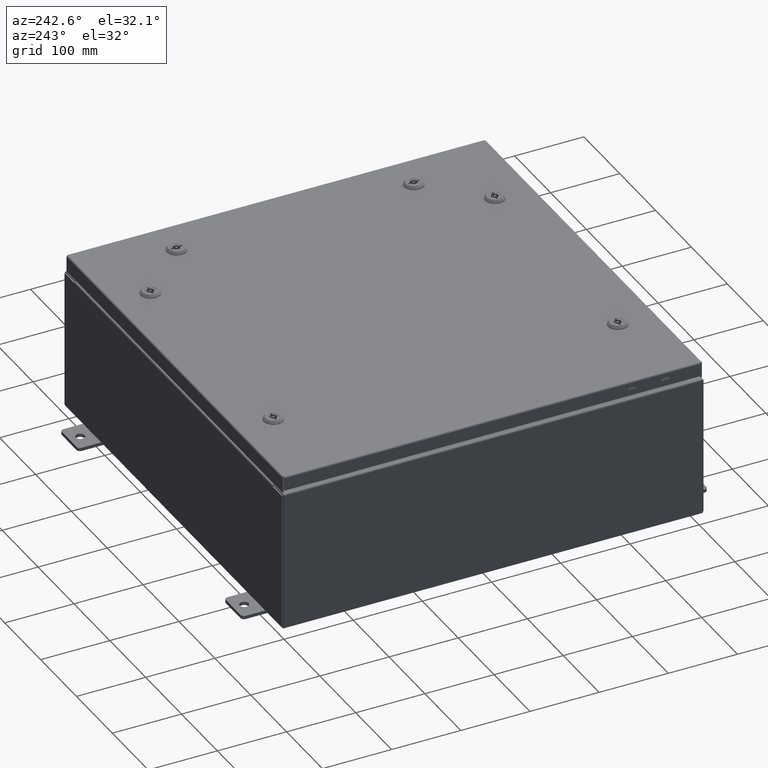
[diagram: clean part render]
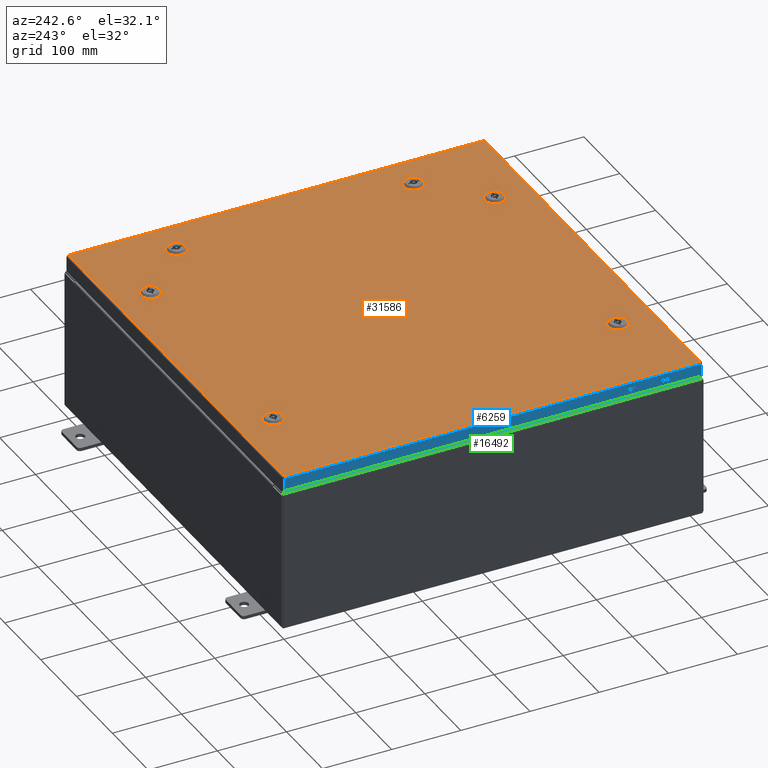
[diagram: same view with three faces highlighted in distinct colors, each labeled with its STEP entity id]
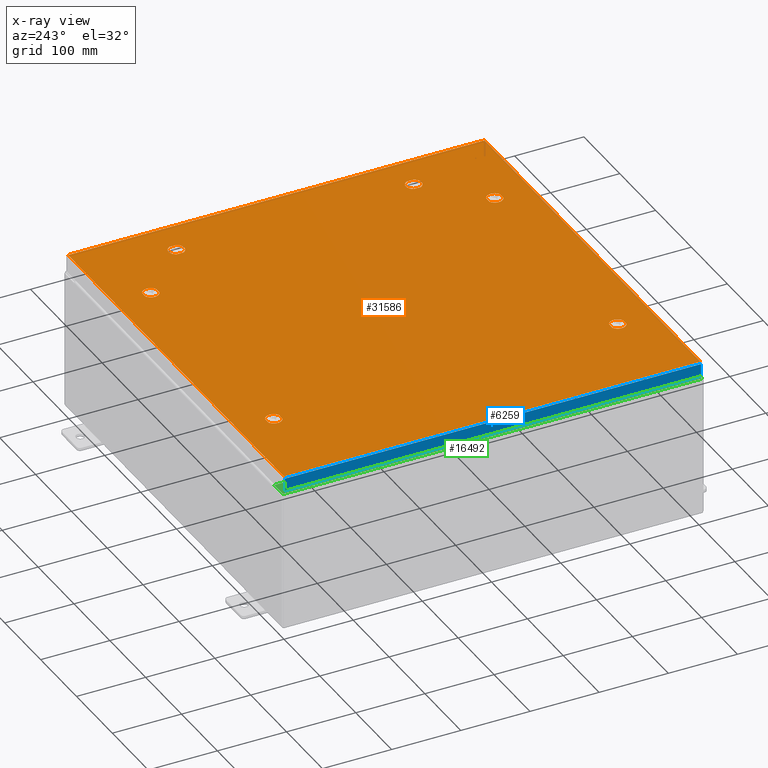
[diagram: x-ray of the same camera — body ghosted, the three highlighted faces saturated]
A machine part, auxiliary view with three faces highlighted in distinct colors.
The next image is the same camera in x-ray (body ghosted, the three faces saturated) — at least one of them is partly hidden behind the body in this view.
Their STEP definitions:

[orange] entity #31586 — the highlighted planar face has unit normal (0, 0, -1).
#211 = CARTESIAN_POINT ( 'NONE',  ( -6.550547624732093500, 10.18279999999998300, 0.0000000000000000000 ) ) ;
#259 = DIRECTION ( 'NONE',  ( 1.000000000000000000, -2.739348669069625000E-015, -6.982962677686286400E-015 ) ) ;
#1509 = CARTESIAN_POINT ( 'NONE',  ( 6.550547624732091700, 10.18279999999998400, -4.574222958191066700E-014 ) ) ;
#1725 = VERTEX_POINT ( 'NONE', #12674 ) ;
#1756 = DIRECTION ( 'NONE',  ( 1.000000000000000000, 0.0000000000000000000, 6.982962677686287200E-015 ) ) ;
#2871 = LINE ( 'NONE', #1509, #56580 ) ;
#2927 = VERTEX_POINT ( 'NONE', #31798 ) ;
#3581 = CARTESIAN_POINT ( 'NONE',  ( -11.84979999999999500, -11.84980000000000000, -2.048885995248197400E-016 ) ) ;
#3587 = CARTESIAN_POINT ( 'NONE',  ( 9.392800000000017100, -6.949452375267905600, -4.852776656685395200E-014 ) ) ;
#3820 = VECTOR ( 'NONE', #10266, 39.37007874015748100 ) ;
#3871 = CARTESIAN_POINT ( 'NONE',  ( 10.18280000000000200, 6.949452375267901200, 0.0000000000000000000 ) ) ;
#3961 = DIRECTION ( 'NONE',  ( -1.000000000000000000, 0.0000000000000000000, -0.0000000000000000000 ) ) ;
#4486 = AXIS2_PLACEMENT_3D ( 'NONE', #47868, #18446, #52763 ) ;
#4502 = ORIENTED_EDGE ( 'NONE', *, *, #22962, .F. ) ;
#4597 = EDGE_LOOP ( 'NONE', ( #37048, #53596, #56960, #48355 ) ) ;
#4646 = DIRECTION ( 'NONE',  ( -1.000000000000000000, -0.0000000000000000000, -0.0000000000000000000 ) ) ;
#4867 = LINE ( 'NONE', #3871, #16378 ) ;
#5065 = EDGE_CURVE ( 'NONE', #21090, #36179, #22117, .T. ) ;
#5110 = AXIS2_PLACEMENT_3D ( 'NONE', #48069, #18641, #52950 ) ;
#6011 = EDGE_CURVE ( 'NONE', #45901, #46710, #13592, .T. ) ;
#6033 = EDGE_CURVE ( 'NONE', #29879, #12035, #49727, .T. ) ;
#6075 = VECTOR ( 'NONE', #50355, 39.37007874015748100 ) ;
#6395 = ORIENTED_EDGE ( 'NONE', *, *, #59703, .F. ) ;
#7459 = ORIENTED_EDGE ( 'NONE', *, *, #33476, .F. ) ;
#7508 = VECTOR ( 'NONE', #4646, 39.37007874015748100 ) ;
#7628 = LINE ( 'NONE', #60737, #6075 ) ;
#7677 = ORIENTED_EDGE ( 'NONE', *, *, #54008, .F. ) ;
#7754 = VERTEX_POINT ( 'NONE', #59115 ) ;
#7964 = CARTESIAN_POINT ( 'NONE',  ( 11.84980000000000000, -11.84980000000000000, -2.048885995248197400E-016 ) ) ;
#8109 = ORIENTED_EDGE ( 'NONE', *, *, #6011, .F. ) ;
#8379 = VERTEX_POINT ( 'NONE', #43693 ) ;
#8432 = ORIENTED_EDGE ( 'NONE', *, *, #24989, .F. ) ;
#8924 = CARTESIAN_POINT ( 'NONE',  ( -6.749999999999984900, 9.787799999999991800, 0.0000000000000000000 ) ) ;
#9014 = EDGE_CURVE ( 'NONE', #60950, #61678, #55619, .T. ) ;
#9612 = CARTESIAN_POINT ( 'NONE',  ( 9.392800000000015400, 6.949452375267905600, 0.0000000000000000000 ) ) ;
#9653 = CARTESIAN_POINT ( 'NONE',  ( 9.787800000000007800, 6.750000000000015100, 0.0000000000000000000 ) ) ;
#10266 = DIRECTION ( 'NONE',  ( -8.218046007208762600E-015, -1.000000000000000000, 0.0000000000000000000 ) ) ;
#10552 = CARTESIAN_POINT ( 'NONE',  ( -6.949452375267869200, 9.392799999999995800, 0.0000000000000000000 ) ) ;
#10561 = CARTESIAN_POINT ( 'NONE',  ( -6.949452375267865600, -10.18279999999999100, 0.0000000000000000000 ) ) ;
#11010 = EDGE_CURVE ( 'NONE', #44659, #41443, #24166, .T. ) ;
#11084 = CIRCLE ( 'NONE', #31980, 0.4424999999999972800 ) ;
#11268 = FACE_BOUND ( 'NONE', #57930, .T. ) ;
#11319 = ORIENTED_EDGE ( 'NONE', *, *, #47717, .F. ) ;
#12035 = VERTEX_POINT ( 'NONE', #27074 ) ;
#12455 = CARTESIAN_POINT ( 'NONE',  ( 10.18280000000000600, -6.949452375267901200, -4.852776656685392100E-014 ) ) ;
#12555 = LINE ( 'NONE', #22367, #34105 ) ;
#12586 = CARTESIAN_POINT ( 'NONE',  ( 6.550547624732091700, -10.18279999999998400, -2.091477791901901000E-013 ) ) ;
#12674 = CARTESIAN_POINT ( 'NONE',  ( 9.392800000000011800, -6.550547624732132600, 0.0000000000000000000 ) ) ;
#12926 = VERTEX_POINT ( 'NONE', #38062 ) ;
#13592 = LINE ( 'NONE', #44717, #38187 ) ;
#13842 = DIRECTION ( 'NONE',  ( 1.000000000000000000, 0.0000000000000000000, 0.0000000000000000000 ) ) ;
#14504 = CIRCLE ( 'NONE', #42289, 0.4424999999999972800 ) ;
#14576 = DIRECTION ( 'NONE',  ( 1.000000000000000000, 0.0000000000000000000, 0.0000000000000000000 ) ) ;
#16076 = DIRECTION ( 'NONE',  ( -1.000000000000000000, -1.095739467627835000E-014, 6.982962677686269100E-015 ) ) ;
#16184 = CARTESIAN_POINT ( 'NONE',  ( -6.749999999999984900, -9.787799999999993600, -2.521317385144147400E-013 ) ) ;
#16310 = LINE ( 'NONE', #3581, #27874 ) ;
#16316 = AXIS2_PLACEMENT_3D ( 'NONE', #60458, #31216, #1756 ) ;
#16378 = VECTOR ( 'NONE', #48129, 39.37007874015748100 ) ;
#16744 = EDGE_CURVE ( 'NONE', #38249, #8379, #2871, .T. ) ;
#16777 = ORIENTED_EDGE ( 'NONE', *, *, #60897, .F. ) ;
#16886 = LINE ( 'NONE', #9612, #3820 ) ;
#17049 = ORIENTED_EDGE ( 'NONE', *, *, #59909, .F. ) ;
#17421 = DIRECTION ( 'NONE',  ( 5.478697338139235000E-015, 1.000000000000000000, 6.982962677686265900E-015 ) ) ;
#17436 = ORIENTED_EDGE ( 'NONE', *, *, #22511, .F. ) ;
#18207 = CARTESIAN_POINT ( 'NONE',  ( -6.949452375267865600, 10.18279999999999000, 0.0000000000000000000 ) ) ;
#18306 = VECTOR ( 'NONE', #36871, 39.37007874015748100 ) ;
#18446 = DIRECTION ( 'NONE',  ( -0.0000000000000000000, -6.982962677686266700E-015, 1.000000000000000000 ) ) ;
#18641 = DIRECTION ( 'NONE',  ( 0.0000000000000000000, 0.0000000000000000000, 1.000000000000000000 ) ) ;
#18882 = VERTEX_POINT ( 'NONE', #58859 ) ;
#19587 = CARTESIAN_POINT ( 'NONE',  ( 10.18280000000000600, -6.949452375267901200, -4.852776656685392100E-014 ) ) ;
#19845 = CIRCLE ( 'NONE', #54371, 0.4424999999999972800 ) ;
#19896 = DIRECTION ( 'NONE',  ( -0.0000000000000000000, -6.982962677686266700E-015, 1.000000000000000000 ) ) ;
#20144 = EDGE_LOOP ( 'NONE', ( #42371, #54232, #49383, #16777, #43898 ) ) ;
#20967 = CIRCLE ( 'NONE', #35721, 0.4424999999999972800 ) ;
#21077 = DIRECTION ( 'NONE',  ( -0.0000000000000000000, -6.982962677686266700E-015, 1.000000000000000000 ) ) ;
#21090 = VERTEX_POINT ( 'NONE', #41942 ) ;
#21156 = DIRECTION ( 'NONE',  ( 0.0000000000000000000, 1.000000000000000000, 6.982962677686287200E-015 ) ) ;
#22117 = LINE ( 'NONE', #43737, #7508 ) ;
#22303 = VECTOR ( 'NONE', #37948, 39.37007874015748100 ) ;
#22367 = CARTESIAN_POINT ( 'NONE',  ( -6.550547624732093500, 10.18279999999998300, 0.0000000000000000000 ) ) ;
#22387 = DIRECTION ( 'NONE',  ( -6.982962677686266700E-015, -6.982962677686266700E-015, 1.000000000000000000 ) ) ;
#22511 = EDGE_CURVE ( 'NONE', #12926, #1725, #30211, .T. ) ;
#22563 = ORIENTED_EDGE ( 'NONE', *, *, #9014, .F. ) ;
#22688 = LINE ( 'NONE', #41398, #34237 ) ;
#22800 = VERTEX_POINT ( 'NONE', #57049 ) ;
#22962 = EDGE_CURVE ( 'NONE', #29265, #54229, #42444, .T. ) ;
#23725 = CARTESIAN_POINT ( 'NONE',  ( 6.949452375267864700, 10.18279999999999000, 0.0000000000000000000 ) ) ;
#23763 = ORIENTED_EDGE ( 'NONE', *, *, #53677, .F. ) ;
#24160 = CARTESIAN_POINT ( 'NONE',  ( -6.749999999999984900, 9.787799999999991800, 0.0000000000000000000 ) ) ;
#24166 = CIRCLE ( 'NONE', #59797, 0.4424999999999972800 ) ;
#24309 = CARTESIAN_POINT ( 'NONE',  ( -11.84980000000000000, 11.84980000000000000, -1.297627796990525000E-015 ) ) ;
#24584 = DIRECTION ( 'NONE',  ( 6.982962677686266700E-015, -0.0000000000000000000, 1.000000000000000000 ) ) ;
#24662 = DIRECTION ( 'NONE',  ( -0.0000000000000000000, -6.982962677686266700E-015, 1.000000000000000000 ) ) ;
#24668 = DIRECTION ( 'NONE',  ( -6.982962677686266700E-015, -6.982962677686266700E-015, 1.000000000000000000 ) ) ;
#24779 = DIRECTION ( 'NONE',  ( 6.982962677686266700E-015, -0.0000000000000000000, 1.000000000000000000 ) ) ;
#24989 = EDGE_CURVE ( 'NONE', #61678, #29879, #55295, .T. ) ;
#25485 = CARTESIAN_POINT ( 'NONE',  ( 9.787800000000007800, 6.750000000000015100, 0.0000000000000000000 ) ) ;
#25574 = VERTEX_POINT ( 'NONE', #18207 ) ;
#25899 = AXIS2_PLACEMENT_3D ( 'NONE', #54058, #24668, #58928 ) ;
#26170 = VERTEX_POINT ( 'NONE', #12586 ) ;
#26484 = VERTEX_POINT ( 'NONE', #34497 ) ;
#26676 = CIRCLE ( 'NONE', #42923, 0.4424999999999972800 ) ;
#27074 = CARTESIAN_POINT ( 'NONE',  ( 6.550547624732099700, -9.392799999999997600, -2.036312386748179800E-013 ) ) ;
#27094 = DIRECTION ( 'NONE',  ( -1.000000000000000000, 1.643609201441752500E-014, 0.0000000000000000000 ) ) ;
#27124 = ORIENTED_EDGE ( 'NONE', *, *, #50511, .F. ) ;
#27364 = ORIENTED_EDGE ( 'NONE', *, *, #47892, .F. ) ;
#27779 = DIRECTION ( 'NONE',  ( 6.982962677686266700E-015, -0.0000000000000000000, 1.000000000000000000 ) ) ;
#27874 = VECTOR ( 'NONE', #62296, 39.37007874015748100 ) ;
#28990 = VERTEX_POINT ( 'NONE', #7964 ) ;
#29022 = DIRECTION ( 'NONE',  ( -1.000000000000000000, 2.739348669069610000E-015, 7.785697190086040200E-029 ) ) ;
#29093 = DIRECTION ( 'NONE',  ( 1.000000000000000000, 0.0000000000000000000, 0.0000000000000000000 ) ) ;
#29265 = VERTEX_POINT ( 'NONE', #29407 ) ;
#29407 = CARTESIAN_POINT ( 'NONE',  ( 9.392800000000015400, -6.949452375267905600, -4.852776656685395200E-014 ) ) ;
#29727 = EDGE_CURVE ( 'NONE', #36179, #40929, #44433, .T. ) ;
#29822 = VECTOR ( 'NONE', #29022, 39.37007874015748100 ) ;
#29879 = VERTEX_POINT ( 'NONE', #52533 ) ;
#29966 = EDGE_CURVE ( 'NONE', #2927, #51291, #51317, .T. ) ;
#30023 = CIRCLE ( 'NONE', #16316, 0.4424999999999972800 ) ;
#30211 = CIRCLE ( 'NONE', #50757, 0.4424999999999983400 ) ;
#30225 = CARTESIAN_POINT ( 'NONE',  ( -6.949452375267869200, -9.392799999999997600, -2.493734682567286900E-013 ) ) ;
#30441 = DIRECTION ( 'NONE',  ( 1.000000000000000000, 0.0000000000000000000, 0.0000000000000000000 ) ) ;
#31071 = CARTESIAN_POINT ( 'NONE',  ( 6.949452375267864700, -10.18279999999999000, -2.063622422052470700E-013 ) ) ;
#31216 = DIRECTION ( 'NONE',  ( -6.982962677686266700E-015, -6.982962677686266700E-015, 1.000000000000000000 ) ) ;
#31293 = ORIENTED_EDGE ( 'NONE', *, *, #55340, .F. ) ;
#31586 = ADVANCED_FACE ( 'NONE', ( #63390, #40484, #61872, #48931, #11268, #37410, #35889 ), #52698, .F. ) ;
#31798 = CARTESIAN_POINT ( 'NONE',  ( -6.307499999999987700, 9.787799999999991800, 0.0000000000000000000 ) ) ;
#31980 = AXIS2_PLACEMENT_3D ( 'NONE', #25485, #59720, #30441 ) ;
#32629 = DIRECTION ( 'NONE',  ( 0.0000000000000000000, 1.000000000000000000, 0.0000000000000000000 ) ) ;
#32980 = CARTESIAN_POINT ( 'NONE',  ( 6.550547624732099700, 9.392799999999997600, -4.574222958191072400E-014 ) ) ;
#33240 = VERTEX_POINT ( 'NONE', #61326 ) ;
#33367 = ORIENTED_EDGE ( 'NONE', *, *, #46502, .F. ) ;
#33427 = DIRECTION ( 'NONE',  ( 0.0000000000000000000, 0.0000000000000000000, -1.000000000000000000 ) ) ;
#33476 = EDGE_CURVE ( 'NONE', #22800, #33240, #54911, .T. ) ;
#33704 = EDGE_CURVE ( 'NONE', #36980, #44659, #22688, .T. ) ;
#33780 = VERTEX_POINT ( 'NONE', #46580 ) ;
#34105 = VECTOR ( 'NONE', #27094, 39.37007874015748100 ) ;
#34237 = VECTOR ( 'NONE', #55932, 39.37007874015748100 ) ;
#34497 = CARTESIAN_POINT ( 'NONE',  ( 10.18280000000000600, 6.550547624732132600, 0.0000000000000000000 ) ) ;
#35074 = DIRECTION ( 'NONE',  ( -1.000000000000000000, -2.739348669069625000E-015, -6.982962677686265900E-015 ) ) ;
#35180 = AXIS2_PLACEMENT_3D ( 'NONE', #54050, #24662, #58922 ) ;
#35268 = EDGE_LOOP ( 'NONE', ( #43153, #17436, #27124, #4502 ) ) ;
#35721 = AXIS2_PLACEMENT_3D ( 'NONE', #16184, #50559, #21156 ) ;
#35889 = FACE_OUTER_BOUND ( 'NONE', #4597, .T. ) ;
#36017 = LINE ( 'NONE', #12455, #47535 ) ;
#36179 = VERTEX_POINT ( 'NONE', #24309 ) ;
#36661 = VECTOR ( 'NONE', #35074, 39.37007874015748100 ) ;
#36771 = EDGE_CURVE ( 'NONE', #40929, #28990, #16310, .T. ) ;
#36871 = DIRECTION ( 'NONE',  ( 0.0000000000000000000, -1.000000000000000000, 0.0000000000000000000 ) ) ;
#36980 = VERTEX_POINT ( 'NONE', #10561 ) ;
#37048 = ORIENTED_EDGE ( 'NONE', *, *, #36771, .T. ) ;
#37383 = ORIENTED_EDGE ( 'NONE', *, *, #6033, .F. ) ;
#37410 = FACE_BOUND ( 'NONE', #39722, .T. ) ;
#37521 = EDGE_LOOP ( 'NONE', ( #37383, #8432, #22563, #11319, #33367 ) ) ;
#37948 = DIRECTION ( 'NONE',  ( 1.095739467627835000E-014, -1.000000000000000000, -6.982962677686269100E-015 ) ) ;
#38062 = CARTESIAN_POINT ( 'NONE',  ( 10.18280000000000700, -6.550547624732132600, -4.574222958191090100E-014 ) ) ;
#38110 = EDGE_CURVE ( 'NONE', #50211, #18882, #54610, .T. ) ;
#38187 = VECTOR ( 'NONE', #259, 39.37007874015748100 ) ;
#38249 = VERTEX_POINT ( 'NONE', #23725 ) ;
#39426 = EDGE_CURVE ( 'NONE', #45511, #36980, #47336, .T. ) ;
#39616 = AXIS2_PLACEMENT_3D ( 'NONE', #8924, #43279, #13842 ) ;
#39722 = EDGE_LOOP ( 'NONE', ( #47894, #42697, #6395, #40258, #27364 ) ) ;
#40258 = ORIENTED_EDGE ( 'NONE', *, *, #29966, .F. ) ;
#40484 = FACE_BOUND ( 'NONE', #48746, .T. ) ;
#40929 = VERTEX_POINT ( 'NONE', #58027 ) ;
#41398 = CARTESIAN_POINT ( 'NONE',  ( -6.550547624732093500, -10.18279999999998400, -2.548900087721007400E-013 ) ) ;
#41443 = VERTEX_POINT ( 'NONE', #41560 ) ;
#41560 = CARTESIAN_POINT ( 'NONE',  ( -6.307499999999987700, -9.787799999999993600, -2.521317385144147400E-013 ) ) ;
#41596 = VECTOR ( 'NONE', #44955, 39.37007874015748100 ) ;
#41942 = CARTESIAN_POINT ( 'NONE',  ( 11.84980000000000200, 11.84980000000000000, 8.878505979408856000E-016 ) ) ;
#42135 = CIRCLE ( 'NONE', #42474, 0.4424999999999972800 ) ;
#42289 = AXIS2_PLACEMENT_3D ( 'NONE', #24160, #58406, #29093 ) ;
#42371 = ORIENTED_EDGE ( 'NONE', *, *, #33704, .F. ) ;
#42444 = CIRCLE ( 'NONE', #35180, 0.4424999999999972800 ) ;
#42474 = AXIS2_PLACEMENT_3D ( 'NONE', #53973, #24584, #58835 ) ;
#42697 = ORIENTED_EDGE ( 'NONE', *, *, #44212, .F. ) ;
#42923 = AXIS2_PLACEMENT_3D ( 'NONE', #54153, #24779, #59021 ) ;
#42956 = AXIS2_PLACEMENT_3D ( 'NONE', #51802, #22387, #56650 ) ;
#43062 = LINE ( 'NONE', #61876, #54540 ) ;
#43153 = ORIENTED_EDGE ( 'NONE', *, *, #46779, .F. ) ;
#43279 = DIRECTION ( 'NONE',  ( 0.0000000000000000000, 0.0000000000000000000, 1.000000000000000000 ) ) ;
#43693 = CARTESIAN_POINT ( 'NONE',  ( 6.550547624732091700, 10.18279999999998400, -4.574222958191066700E-014 ) ) ;
#43737 = CARTESIAN_POINT ( 'NONE',  ( 11.84980000000000200, 11.84980000000000000, 8.878505979408856000E-016 ) ) ;
#43898 = ORIENTED_EDGE ( 'NONE', *, *, #11010, .F. ) ;
#44025 = DIRECTION ( 'NONE',  ( 0.0000000000000000000, 0.0000000000000000000, 1.000000000000000000 ) ) ;
#44212 = EDGE_CURVE ( 'NONE', #25574, #50211, #56169, .T. ) ;
#44431 = LINE ( 'NONE', #48583, #29822 ) ;
#44433 = LINE ( 'NONE', #61230, #18306 ) ;
#44607 = AXIS2_PLACEMENT_3D ( 'NONE', #47799, #33427, #3961 ) ;
#44659 = VERTEX_POINT ( 'NONE', #61539 ) ;
#44717 = CARTESIAN_POINT ( 'NONE',  ( 6.550547624732099700, 9.392799999999997600, -4.574222958191072400E-014 ) ) ;
#44955 = DIRECTION ( 'NONE',  ( 1.000000000000000000, 2.739348669069610000E-015, -0.0000000000000000000 ) ) ;
#45083 = AXIS2_PLACEMENT_3D ( 'NONE', #9653, #44025, #14576 ) ;
#45487 = CARTESIAN_POINT ( 'NONE',  ( 7.192499999999980400, -9.787799999999993600, -2.019067794551563900E-013 ) ) ;
#45511 = VERTEX_POINT ( 'NONE', #30225 ) ;
#45901 = VERTEX_POINT ( 'NONE', #32980 ) ;
#46502 = EDGE_CURVE ( 'NONE', #12035, #26170, #30023, .T. ) ;
#46580 = CARTESIAN_POINT ( 'NONE',  ( 7.192499999999980400, 9.787799999999993600, -5.022495905925838200E-014 ) ) ;
#46710 = VERTEX_POINT ( 'NONE', #47214 ) ;
#46779 = EDGE_CURVE ( 'NONE', #1725, #29265, #48431, .T. ) ;
#47163 = VERTEX_POINT ( 'NONE', #47215 ) ;
#47214 = CARTESIAN_POINT ( 'NONE',  ( 6.949452375267867400, 9.392799999999995800, -4.852776656685374400E-014 ) ) ;
#47215 = CARTESIAN_POINT ( 'NONE',  ( -6.550547624732099700, -9.392799999999997600, -2.493734682567286900E-013 ) ) ;
#47336 = CIRCLE ( 'NONE', #4486, 0.4424999999999983400 ) ;
#47535 = VECTOR ( 'NONE', #17421, 39.37007874015748100 ) ;
#47717 = EDGE_CURVE ( 'NONE', #26170, #60950, #7628, .T. ) ;
#47799 = CARTESIAN_POINT ( 'NONE',  ( 0.0000000000000000000, 0.0000000000000000000, 0.0000000000000000000 ) ) ;
#47868 = CARTESIAN_POINT ( 'NONE',  ( -6.749999999999984900, -9.787799999999993600, -2.521317385144147400E-013 ) ) ;
#47892 = EDGE_CURVE ( 'NONE', #18882, #2927, #14504, .T. ) ;
#47894 = ORIENTED_EDGE ( 'NONE', *, *, #38110, .F. ) ;
#48069 = CARTESIAN_POINT ( 'NONE',  ( -6.749999999999984900, 9.787799999999991800, 0.0000000000000000000 ) ) ;
#48129 = DIRECTION ( 'NONE',  ( -5.478697338139235000E-015, 1.000000000000000000, -0.0000000000000000000 ) ) ;
#48355 = ORIENTED_EDGE ( 'NONE', *, *, #29727, .T. ) ;
#48431 = LINE ( 'NONE', #3587, #22303 ) ;
#48583 = CARTESIAN_POINT ( 'NONE',  ( -6.550547624732099700, -9.392799999999997600, -2.493734682567286900E-013 ) ) ;
#48689 = EDGE_CURVE ( 'NONE', #33240, #7754, #16886, .T. ) ;
#48746 = EDGE_LOOP ( 'NONE', ( #17049, #61480, #60612, #7459 ) ) ;
#48931 = FACE_BOUND ( 'NONE', #20144, .T. ) ;
#49329 = CARTESIAN_POINT ( 'NONE',  ( -6.749999999999984900, -9.787799999999993600, -2.521317385144147400E-013 ) ) ;
#49383 = ORIENTED_EDGE ( 'NONE', *, *, #54152, .F. ) ;
#49727 = LINE ( 'NONE', #54512, #36661 ) ;
#50211 = VERTEX_POINT ( 'NONE', #10552 ) ;
#50355 = DIRECTION ( 'NONE',  ( 1.000000000000000000, -1.095739467627835000E-014, 6.982962677686171300E-015 ) ) ;
#50490 = CARTESIAN_POINT ( 'NONE',  ( 9.787800000000007800, -6.750000000000015100, -4.713499807438240100E-014 ) ) ;
#50511 = EDGE_CURVE ( 'NONE', #54229, #12926, #36017, .T. ) ;
#50559 = DIRECTION ( 'NONE',  ( -0.0000000000000000000, -6.982962677686266700E-015, 1.000000000000000000 ) ) ;
#50757 = AXIS2_PLACEMENT_3D ( 'NONE', #50490, #21077, #55361 ) ;
#51291 = VERTEX_POINT ( 'NONE', #211 ) ;
#51317 = CIRCLE ( 'NONE', #39616, 0.4424999999999972800 ) ;
#51802 = CARTESIAN_POINT ( 'NONE',  ( 6.749999999999983100, -9.787799999999993600, -2.049967404400325100E-013 ) ) ;
#52533 = CARTESIAN_POINT ( 'NONE',  ( 6.949452375267867400, -9.392799999999995800, 0.0000000000000000000 ) ) ;
#52614 = ORIENTED_EDGE ( 'NONE', *, *, #16744, .F. ) ;
#52698 = PLANE ( 'NONE',  #44607 ) ;
#52763 = DIRECTION ( 'NONE',  ( 0.0000000000000000000, 1.000000000000000000, 6.982962677686270700E-015 ) ) ;
#52950 = DIRECTION ( 'NONE',  ( 1.000000000000000000, 0.0000000000000000000, 0.0000000000000000000 ) ) ;
#53596 = ORIENTED_EDGE ( 'NONE', *, *, #63360, .T. ) ;
#53677 = EDGE_CURVE ( 'NONE', #8379, #45901, #42135, .T. ) ;
#53973 = CARTESIAN_POINT ( 'NONE',  ( 6.749999999999983100, 9.787799999999993600, -4.713499807438223100E-014 ) ) ;
#54008 = EDGE_CURVE ( 'NONE', #33780, #38249, #19845, .T. ) ;
#54050 = CARTESIAN_POINT ( 'NONE',  ( 9.787800000000007800, -6.750000000000015100, -4.713499807438240100E-014 ) ) ;
#54058 = CARTESIAN_POINT ( 'NONE',  ( 6.749999999999983100, -9.787799999999993600, -2.049967404400325100E-013 ) ) ;
#54152 = EDGE_CURVE ( 'NONE', #47163, #45511, #44431, .T. ) ;
#54153 = CARTESIAN_POINT ( 'NONE',  ( 6.749999999999983100, 9.787799999999993600, -4.713499807438223100E-014 ) ) ;
#54202 = DIRECTION ( 'NONE',  ( 0.0000000000000000000, 1.000000000000000000, 6.982962677686287200E-015 ) ) ;
#54229 = VERTEX_POINT ( 'NONE', #19587 ) ;
#54232 = ORIENTED_EDGE ( 'NONE', *, *, #39426, .F. ) ;
#54371 = AXIS2_PLACEMENT_3D ( 'NONE', #57099, #27779, #61994 ) ;
#54512 = CARTESIAN_POINT ( 'NONE',  ( 6.550547624732099700, -9.392799999999997600, -2.036312386748179800E-013 ) ) ;
#54540 = VECTOR ( 'NONE', #32629, 39.37007874015748100 ) ;
#54610 = LINE ( 'NONE', #59628, #41596 ) ;
#54911 = CIRCLE ( 'NONE', #45083, 0.4424999999999972800 ) ;
#55295 = CIRCLE ( 'NONE', #25899, 0.4424999999999972800 ) ;
#55340 = EDGE_CURVE ( 'NONE', #46710, #33780, #26676, .T. ) ;
#55361 = DIRECTION ( 'NONE',  ( 0.0000000000000000000, 1.000000000000000000, 6.982962677686252500E-015 ) ) ;
#55619 = CIRCLE ( 'NONE', #42956, 0.4424999999999972800 ) ;
#55932 = DIRECTION ( 'NONE',  ( 1.000000000000000000, 1.643609201441752500E-014, 7.785697190085976300E-029 ) ) ;
#56169 = CIRCLE ( 'NONE', #5110, 0.4424999999999983400 ) ;
#56580 = VECTOR ( 'NONE', #16076, 39.37007874015748100 ) ;
#56650 = DIRECTION ( 'NONE',  ( 1.000000000000000000, 0.0000000000000000000, 6.982962677686287200E-015 ) ) ;
#56960 = ORIENTED_EDGE ( 'NONE', *, *, #5065, .T. ) ;
#57049 = CARTESIAN_POINT ( 'NONE',  ( 10.18280000000000200, 6.949452375267901200, 0.0000000000000000000 ) ) ;
#57099 = CARTESIAN_POINT ( 'NONE',  ( 6.749999999999983100, 9.787799999999993600, -4.713499807438223100E-014 ) ) ;
#57930 = EDGE_LOOP ( 'NONE', ( #52614, #7677, #31293, #8109, #23763 ) ) ;
#58027 = CARTESIAN_POINT ( 'NONE',  ( -11.84979999999999500, -11.84980000000000000, -2.048885995248197400E-016 ) ) ;
#58406 = DIRECTION ( 'NONE',  ( 0.0000000000000000000, 0.0000000000000000000, 1.000000000000000000 ) ) ;
#58686 = EDGE_CURVE ( 'NONE', #7754, #26484, #11084, .T. ) ;
#58835 = DIRECTION ( 'NONE',  ( -1.000000000000000000, 0.0000000000000000000, 6.982962677686269100E-015 ) ) ;
#58859 = CARTESIAN_POINT ( 'NONE',  ( -6.550547624732099700, 9.392799999999995800, 0.0000000000000000000 ) ) ;
#58922 = DIRECTION ( 'NONE',  ( 0.0000000000000000000, 1.000000000000000000, 6.982962677686269100E-015 ) ) ;
#58928 = DIRECTION ( 'NONE',  ( 1.000000000000000000, 0.0000000000000000000, 6.982962677686287200E-015 ) ) ;
#59021 = DIRECTION ( 'NONE',  ( -1.000000000000000000, 0.0000000000000000000, 6.982962677686269100E-015 ) ) ;
#59115 = CARTESIAN_POINT ( 'NONE',  ( 9.392800000000011800, 6.550547624732132600, 0.0000000000000000000 ) ) ;
#59628 = CARTESIAN_POINT ( 'NONE',  ( -6.550547624732099700, 9.392799999999995800, 0.0000000000000000000 ) ) ;
#59703 = EDGE_CURVE ( 'NONE', #51291, #25574, #12555, .T. ) ;
#59720 = DIRECTION ( 'NONE',  ( 0.0000000000000000000, 0.0000000000000000000, 1.000000000000000000 ) ) ;
#59797 = AXIS2_PLACEMENT_3D ( 'NONE', #49329, #19896, #54202 ) ;
#59909 = EDGE_CURVE ( 'NONE', #26484, #22800, #4867, .T. ) ;
#60458 = CARTESIAN_POINT ( 'NONE',  ( 6.749999999999983100, -9.787799999999993600, -2.049967404400325100E-013 ) ) ;
#60612 = ORIENTED_EDGE ( 'NONE', *, *, #48689, .F. ) ;
#60737 = CARTESIAN_POINT ( 'NONE',  ( 6.550547624732091700, -10.18279999999998400, -2.091477791901900700E-013 ) ) ;
#60897 = EDGE_CURVE ( 'NONE', #41443, #47163, #20967, .T. ) ;
#60950 = VERTEX_POINT ( 'NONE', #31071 ) ;
#61230 = CARTESIAN_POINT ( 'NONE',  ( -11.84980000000000000, 11.84980000000000000, -1.297627796990525000E-015 ) ) ;
#61326 = CARTESIAN_POINT ( 'NONE',  ( 9.392800000000015400, 6.949452375267905600, 0.0000000000000000000 ) ) ;
#61480 = ORIENTED_EDGE ( 'NONE', *, *, #58686, .F. ) ;
#61539 = CARTESIAN_POINT ( 'NONE',  ( -6.550547624732093500, -10.18279999999998400, -2.548900087721007400E-013 ) ) ;
#61678 = VERTEX_POINT ( 'NONE', #45487 ) ;
#61872 = FACE_BOUND ( 'NONE', #37521, .T. ) ;
#61876 = CARTESIAN_POINT ( 'NONE',  ( 11.84980000000000000, -11.84980000000000000, -2.048885995248197400E-016 ) ) ;
#61994 = DIRECTION ( 'NONE',  ( -1.000000000000000000, 0.0000000000000000000, 6.982962677686269100E-015 ) ) ;
#62296 = DIRECTION ( 'NONE',  ( 1.000000000000000000, -0.0000000000000000000, -0.0000000000000000000 ) ) ;
#63360 = EDGE_CURVE ( 'NONE', #28990, #21090, #43062, .T. ) ;
#63390 = FACE_BOUND ( 'NONE', #35268, .T. ) ;

[blue] entity #6259 — the highlighted planar face has unit normal (1, 0, -0).
#627 = CARTESIAN_POINT ( 'NONE',  ( -11.93750000000000000, 11.84865786437627300, -0.7949999999999968200 ) ) ;
#1244 = CARTESIAN_POINT ( 'NONE',  ( -11.93749999999999800, -11.84865786437626800, -0.08769999999999897300 ) ) ;
#1673 = LINE ( 'NONE', #57563, #26273 ) ;
#5699 = CARTESIAN_POINT ( 'NONE',  ( -11.93750000000000000, -11.84865786437626600, -0.7949999999999996000 ) ) ;
#6259 = ADVANCED_FACE ( 'NONE', ( #40483 ), #54689, .F. ) ;
#9188 = CARTESIAN_POINT ( 'NONE',  ( -11.93749999999999800, -11.84865786437626900, -0.07469999999999976700 ) ) ;
#10296 = VERTEX_POINT ( 'NONE', #627 ) ;
#12717 = CARTESIAN_POINT ( 'NONE',  ( -11.93749999999999800, -11.93750000000000000, -0.08770000000000004200 ) ) ;
#12815 = EDGE_CURVE ( 'NONE', #27944, #61660, #63598, .T. ) ;
#15548 = LINE ( 'NONE', #17850, #47092 ) ;
#17850 = CARTESIAN_POINT ( 'NONE',  ( -11.93750000000000000, -11.93750000000000000, -0.7949999999999997100 ) ) ;
#18513 = EDGE_CURVE ( 'NONE', #61660, #60762, #57976, .T. ) ;
#22745 = EDGE_CURVE ( 'NONE', #60762, #10296, #15548, .T. ) ;
#25320 = CARTESIAN_POINT ( 'NONE',  ( -11.93749999999999800, -1.092739197465709600E-015, 3.648065030670394700E-014 ) ) ;
#26038 = ORIENTED_EDGE ( 'NONE', *, *, #62118, .T. ) ;
#26273 = VECTOR ( 'NONE', #62500, 39.37007874015748100 ) ;
#27944 = VERTEX_POINT ( 'NONE', #38803 ) ;
#29969 = ORIENTED_EDGE ( 'NONE', *, *, #18513, .F. ) ;
#30291 = DIRECTION ( 'NONE',  ( -3.034122441942816500E-015, 0.0000000000000000000, -1.000000000000000000 ) ) ;
#31009 = ORIENTED_EDGE ( 'NONE', *, *, #22745, .F. ) ;
#32004 = VECTOR ( 'NONE', #38644, 39.37007874015748100 ) ;
#38644 = DIRECTION ( 'NONE',  ( -3.034122441942817300E-015, 6.982962677686265900E-015, -1.000000000000000000 ) ) ;
#38803 = CARTESIAN_POINT ( 'NONE',  ( -11.93750000000000000, 11.84865786437626800, -0.08769999999999786300 ) ) ;
#39147 = VECTOR ( 'NONE', #56871, 39.37007874015748100 ) ;
#40483 = FACE_OUTER_BOUND ( 'NONE', #57821, .T. ) ;
#40787 = AXIS2_PLACEMENT_3D ( 'NONE', #25320, #59566, #30291 ) ;
#42306 = DIRECTION ( 'NONE',  ( -9.153836209136798400E-017, 1.000000000000000000, 1.201441002449204700E-016 ) ) ;
#47092 = VECTOR ( 'NONE', #42306, 39.37007874015748100 ) ;
#51049 = ORIENTED_EDGE ( 'NONE', *, *, #12815, .F. ) ;
#54689 = PLANE ( 'NONE',  #40787 ) ;
#56871 = DIRECTION ( 'NONE',  ( 9.153836209136808200E-017, -1.000000000000000000, -9.153836209136826700E-017 ) ) ;
#57563 = CARTESIAN_POINT ( 'NONE',  ( -11.93749999999999800, 11.84865786437626800, 1.192193859543173000E-013 ) ) ;
#57821 = EDGE_LOOP ( 'NONE', ( #51049, #26038, #31009, #29969 ) ) ;
#57976 = LINE ( 'NONE', #9188, #32004 ) ;
#59566 = DIRECTION ( 'NONE',  ( 1.000000000000000000, 9.153836209136835400E-017, -3.034122441942816500E-015 ) ) ;
#60762 = VERTEX_POINT ( 'NONE', #5699 ) ;
#61660 = VERTEX_POINT ( 'NONE', #1244 ) ;
#62118 = EDGE_CURVE ( 'NONE', #27944, #10296, #1673, .T. ) ;
#62500 = DIRECTION ( 'NONE',  ( -3.034122441942817300E-015, 6.982962677686265900E-015, -1.000000000000000000 ) ) ;
#63598 = LINE ( 'NONE', #12717, #39147 ) ;

[green] entity #16492 — the highlighted planar face has unit normal (0, 0, -1).
#25 = DIRECTION ( 'NONE',  ( 6.720413268546771600E-015, 0.0000000000000000000, -1.000000000000000000 ) ) ;
#865 = VERTEX_POINT ( 'NONE', #41229 ) ;
#939 = CARTESIAN_POINT ( 'NONE',  ( -10.94970000000003000, 10.88110000000000000, 7.925300000000006200 ) ) ;
#2510 = LINE ( 'NONE', #31214, #38623 ) ;
#3343 = VECTOR ( 'NONE', #50601, 39.37007874015748100 ) ;
#3584 = CARTESIAN_POINT ( 'NONE',  ( -5.352210493322583500E-014, -11.92530000000000000, 7.925300000000079900 ) ) ;
#4167 = VERTEX_POINT ( 'NONE', #34453 ) ;
#5527 = LINE ( 'NONE', #3584, #30146 ) ;
#5706 = EDGE_CURVE ( 'NONE', #36227, #37643, #8256, .T. ) ;
#5954 = LINE ( 'NONE', #58595, #55077 ) ;
#6345 = VECTOR ( 'NONE', #22271, 39.37007874015748100 ) ;
#6712 = CARTESIAN_POINT ( 'NONE',  ( -11.00005000000003000, 10.86242499999999800, 7.925300000000006200 ) ) ;
#7669 = VECTOR ( 'NONE', #11229, 39.37007874015748100 ) ;
#7906 = LINE ( 'NONE', #12371, #6345 ) ;
#8177 = ORIENTED_EDGE ( 'NONE', *, *, #45249, .F. ) ;
#8256 = LINE ( 'NONE', #57490, #45903 ) ;
#8520 = DIRECTION ( 'NONE',  ( 1.000000000000000000, -0.0000000000000000000, 6.720413268546771600E-015 ) ) ;
#8928 = CARTESIAN_POINT ( 'NONE',  ( -10.94970000000003000, 11.92529999999999800, 7.925300000000006200 ) ) ;
#9340 = ORIENTED_EDGE ( 'NONE', *, *, #11246, .F. ) ;
#10560 = FACE_OUTER_BOUND ( 'NONE', #43086, .T. ) ;
#10566 = VERTEX_POINT ( 'NONE', #36888 ) ;
#11229 = DIRECTION ( 'NONE',  ( -1.000000000000000000, -4.340572780400098900E-014, 0.0000000000000000000 ) ) ;
#11246 = EDGE_CURVE ( 'NONE', #4167, #36934, #57114, .T. ) ;
#11663 = DIRECTION ( 'NONE',  ( 1.000000000000000000, 0.0000000000000000000, 0.0000000000000000000 ) ) ;
#12371 = CARTESIAN_POINT ( 'NONE',  ( -10.94970000000003000, 0.0000000000000000000, 7.925300000000006200 ) ) ;
#12480 = CARTESIAN_POINT ( 'NONE',  ( -11.91230000000003200, -11.92530000000000000, 7.925300000000000000 ) ) ;
#12665 = EDGE_CURVE ( 'NONE', #42090, #4167, #30726, .T. ) ;
#12870 = CARTESIAN_POINT ( 'NONE',  ( -11.00005000000003000, -10.86242499999998800, 7.925300000000006200 ) ) ;
#13363 = DIRECTION ( 'NONE',  ( -1.000000000000000000, 0.0000000000000000000, 0.0000000000000000000 ) ) ;
#13898 = EDGE_CURVE ( 'NONE', #44510, #42090, #45325, .T. ) ;
#16231 = CARTESIAN_POINT ( 'NONE',  ( -5.352210493322583500E-014, 11.92529999999999800, 7.925300000000079900 ) ) ;
#16492 = ADVANCED_FACE ( 'NONE', ( #10560 ), #58761, .F. ) ;
#17236 = DIRECTION ( 'NONE',  ( 1.000000000000000000, 0.0000000000000000000, 0.0000000000000000000 ) ) ;
#17843 = DIRECTION ( 'NONE',  ( 1.000000000000000000, 0.0000000000000000000, 0.0000000000000000000 ) ) ;
#18029 = VECTOR ( 'NONE', #26105, 39.37007874015748100 ) ;
#18709 = ORIENTED_EDGE ( 'NONE', *, *, #36605, .T. ) ;
#20997 = ORIENTED_EDGE ( 'NONE', *, *, #12665, .F. ) ;
#21621 = CIRCLE ( 'NONE', #32355, 0.01867499999999949400 ) ;
#21874 = CARTESIAN_POINT ( 'NONE',  ( -11.00005000000003000, -10.84374999999998800, 7.925300000000005300 ) ) ;
#22271 = DIRECTION ( 'NONE',  ( 0.0000000000000000000, 1.000000000000000000, 0.0000000000000000000 ) ) ;
#22460 = ORIENTED_EDGE ( 'NONE', *, *, #35788, .T. ) ;
#22598 = EDGE_CURVE ( 'NONE', #44510, #34845, #2510, .T. ) ;
#23429 = EDGE_CURVE ( 'NONE', #32171, #10566, #5527, .T. ) ;
#25313 = ORIENTED_EDGE ( 'NONE', *, *, #32120, .F. ) ;
#25389 = AXIS2_PLACEMENT_3D ( 'NONE', #6712, #41091, #11663 ) ;
#26105 = DIRECTION ( 'NONE',  ( 1.000000000000000000, 0.0000000000000000000, 0.0000000000000000000 ) ) ;
#26468 = DIRECTION ( 'NONE',  ( 0.0000000000000000000, 1.000000000000000000, 0.0000000000000000000 ) ) ;
#27955 = EDGE_CURVE ( 'NONE', #32171, #865, #58147, .T. ) ;
#29234 = CARTESIAN_POINT ( 'NONE',  ( -5.352210493322583500E-014, 0.0000000000000000000, 7.925300000000079900 ) ) ;
#30146 = VECTOR ( 'NONE', #8520, 39.37007874015748100 ) ;
#30392 = EDGE_CURVE ( 'NONE', #36934, #36227, #5954, .T. ) ;
#30726 = CIRCLE ( 'NONE', #25389, 0.01867499999999949400 ) ;
#31214 = CARTESIAN_POINT ( 'NONE',  ( -10.94970000000003000, 0.0000000000000000000, 7.925300000000006200 ) ) ;
#31866 = CARTESIAN_POINT ( 'NONE',  ( -11.00005000000003000, -10.88109999999998800, 7.925300000000006200 ) ) ;
#32120 = EDGE_CURVE ( 'NONE', #48927, #51826, #36604, .T. ) ;
#32171 = VERTEX_POINT ( 'NONE', #12480 ) ;
#32341 = ORIENTED_EDGE ( 'NONE', *, *, #23429, .T. ) ;
#32355 = AXIS2_PLACEMENT_3D ( 'NONE', #12870, #47282, #17843 ) ;
#33653 = CARTESIAN_POINT ( 'NONE',  ( -10.96270000000003200, 10.84374999999999800, 7.925300000000006200 ) ) ;
#34108 = DIRECTION ( 'NONE',  ( -0.0000000000000000000, 1.000000000000000000, -0.0000000000000000000 ) ) ;
#34424 = DIRECTION ( 'NONE',  ( -1.000000000000000000, 0.0000000000000000000, -6.720413268546771600E-015 ) ) ;
#34453 = CARTESIAN_POINT ( 'NONE',  ( -11.00005000000003000, 10.84374999999999800, 7.925300000000005300 ) ) ;
#34845 = VERTEX_POINT ( 'NONE', #8928 ) ;
#35166 = CARTESIAN_POINT ( 'NONE',  ( -10.94970000000003000, 10.88110000000000000, 7.925300000000006200 ) ) ;
#35719 = ORIENTED_EDGE ( 'NONE', *, *, #30392, .F. ) ;
#35788 = EDGE_CURVE ( 'NONE', #34845, #865, #40986, .T. ) ;
#36219 = AXIS2_PLACEMENT_3D ( 'NONE', #29234, #25, #34424 ) ;
#36227 = VERTEX_POINT ( 'NONE', #49243 ) ;
#36604 = LINE ( 'NONE', #31866, #61060 ) ;
#36605 = EDGE_CURVE ( 'NONE', #10566, #51826, #7906, .T. ) ;
#36888 = CARTESIAN_POINT ( 'NONE',  ( -10.94970000000003000, -11.92530000000000000, 7.925300000000006200 ) ) ;
#36934 = VERTEX_POINT ( 'NONE', #33653 ) ;
#37643 = VERTEX_POINT ( 'NONE', #21874 ) ;
#38623 = VECTOR ( 'NONE', #26468, 39.37007874015748100 ) ;
#40986 = LINE ( 'NONE', #16231, #3343 ) ;
#41091 = DIRECTION ( 'NONE',  ( -6.720413268546770800E-015, -0.0000000000000000000, 1.000000000000000000 ) ) ;
#41229 = CARTESIAN_POINT ( 'NONE',  ( -11.91230000000003200, 11.92529999999999800, 7.925300000000000000 ) ) ;
#42090 = VERTEX_POINT ( 'NONE', #52222 ) ;
#42466 = CARTESIAN_POINT ( 'NONE',  ( -10.94970000000003000, -10.88109999999998400, 7.925300000000006200 ) ) ;
#43086 = EDGE_LOOP ( 'NONE', ( #51936, #58423, #22460, #58540, #32341, #18709, #25313, #8177, #56150, #35719, #9340, #20997 ) ) ;
#44510 = VERTEX_POINT ( 'NONE', #35166 ) ;
#45207 = VECTOR ( 'NONE', #34108, 39.37007874015748100 ) ;
#45249 = EDGE_CURVE ( 'NONE', #37643, #48927, #21621, .T. ) ;
#45325 = LINE ( 'NONE', #939, #7669 ) ;
#45903 = VECTOR ( 'NONE', #13363, 39.37007874015748100 ) ;
#46067 = CARTESIAN_POINT ( 'NONE',  ( -11.00005000000003000, 10.84374999999999800, 7.925300000000006200 ) ) ;
#47282 = DIRECTION ( 'NONE',  ( -6.720413268546770800E-015, -0.0000000000000000000, 1.000000000000000000 ) ) ;
#48692 = CARTESIAN_POINT ( 'NONE',  ( -11.91230000000003200, 11.92529999999999800, 7.925300000000000000 ) ) ;
#48927 = VERTEX_POINT ( 'NONE', #55893 ) ;
#49243 = CARTESIAN_POINT ( 'NONE',  ( -10.96270000000003200, -10.84374999999998800, 7.925300000000006200 ) ) ;
#50601 = DIRECTION ( 'NONE',  ( -1.000000000000000000, 0.0000000000000000000, -6.720413268546771600E-015 ) ) ;
#51826 = VERTEX_POINT ( 'NONE', #42466 ) ;
#51936 = ORIENTED_EDGE ( 'NONE', *, *, #13898, .F. ) ;
#52222 = CARTESIAN_POINT ( 'NONE',  ( -11.00005000000003000, 10.88109999999999800, 7.925300000000005300 ) ) ;
#55077 = VECTOR ( 'NONE', #63503, 39.37007874015748100 ) ;
#55893 = CARTESIAN_POINT ( 'NONE',  ( -11.00005000000003000, -10.88109999999998800, 7.925300000000005300 ) ) ;
#56150 = ORIENTED_EDGE ( 'NONE', *, *, #5706, .F. ) ;
#57114 = LINE ( 'NONE', #46067, #18029 ) ;
#57490 = CARTESIAN_POINT ( 'NONE',  ( -10.96270000000003200, -10.84374999999998800, 7.925300000000006200 ) ) ;
#58147 = LINE ( 'NONE', #48692, #45207 ) ;
#58423 = ORIENTED_EDGE ( 'NONE', *, *, #22598, .T. ) ;
#58540 = ORIENTED_EDGE ( 'NONE', *, *, #27955, .F. ) ;
#58595 = CARTESIAN_POINT ( 'NONE',  ( -10.96270000000003200, 10.84374999999999600, 7.925300000000006200 ) ) ;
#58761 = PLANE ( 'NONE',  #36219 ) ;
#61060 = VECTOR ( 'NONE', #17236, 39.37007874015748100 ) ;
#63503 = DIRECTION ( 'NONE',  ( -0.0000000000000000000, -1.000000000000000000, -0.0000000000000000000 ) ) ;